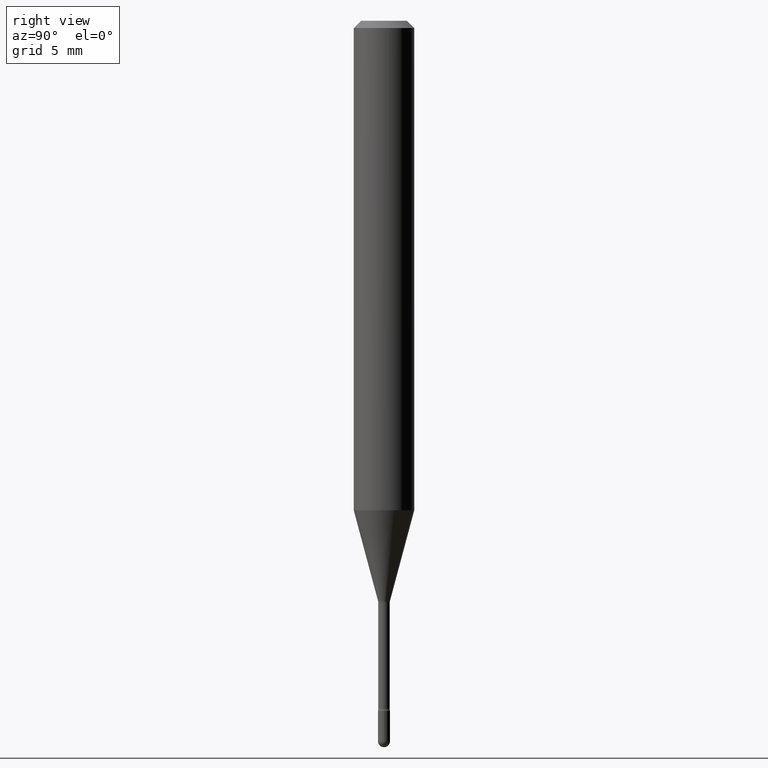
[diagram: clean part render]
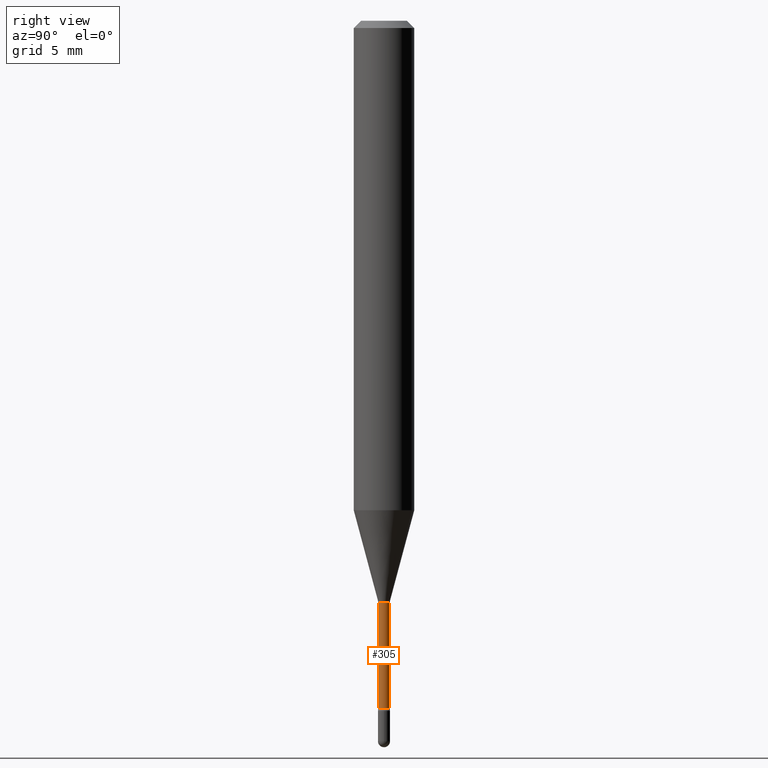
[diagram: same view with one face highlighted and labeled with its STEP entity id]
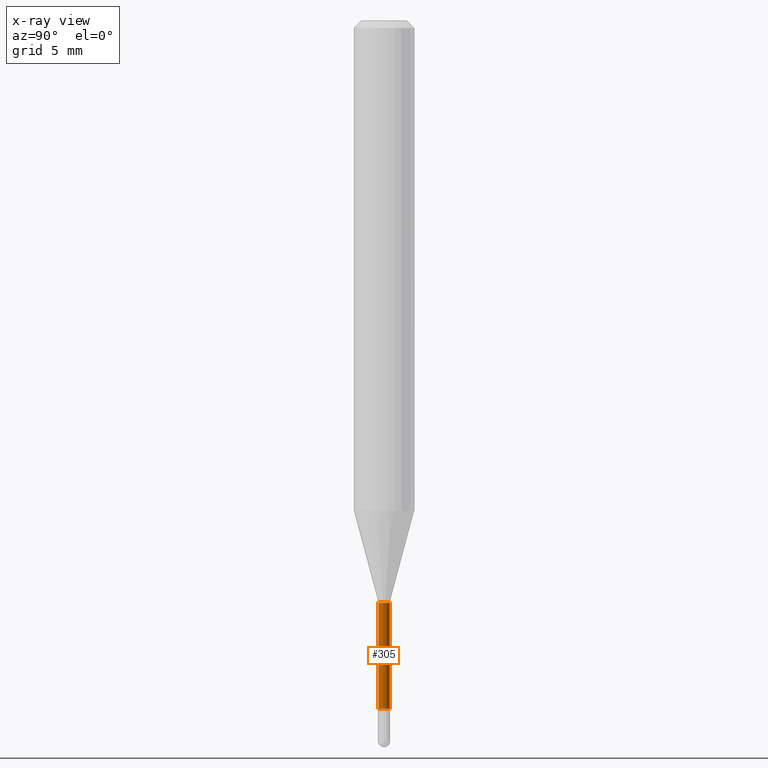
[diagram: x-ray of the same camera — body ghosted, the highlighted face saturated]
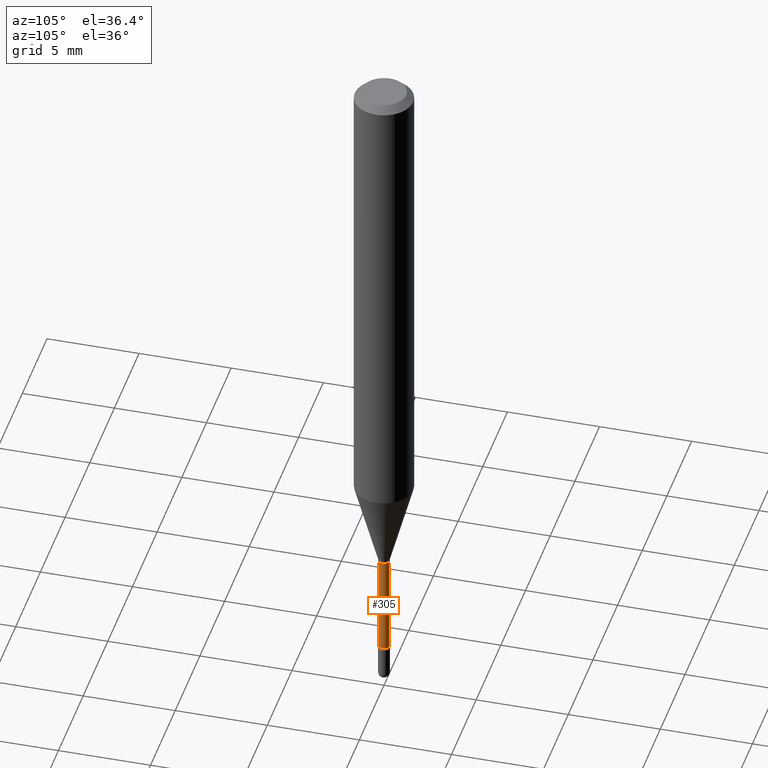
[diagram: same view with one face highlighted and labeled with its STEP entity id]
A machine part, right view. The second image highlights one B-rep face of the part: STEP entity #305.
The next image is the same camera in x-ray: the body ghosted, the highlighted face saturated — about 0% of this face is hidden behind the body in this view.
A second angle (auxiliary view) of the same face is appended — the face is thin or edge-on in the first view.
In plain terms, the highlighted cylindrical surface (edge-blend (fillet) strip) has radius 0.2985 mm, axis along (-0, 0, 1).
Its self-contained STEP definition (entity closure, byte-faithful):
#9 = AXIS2_PLACEMENT_3D ( 'NONE', #17, #540, #430 ) ;
#11 = EDGE_CURVE ( 'NONE', #352, #272, #504, .T. ) ;
#13 = DIRECTION ( 'NONE',  ( -2.445561478799539239E-29, 3.491348626384723119E-15, 1.000000000000000000 ) ) ;
#17 = CARTESIAN_POINT ( 'NONE',  ( 2.939503238709759037E-29, -4.196513023160846013E-15, -1.201974787463810701 ) ) ;
#31 = CARTESIAN_POINT ( 'NONE',  ( 3.473470712384296242E-29, -4.958819193710618417E-15, -1.420316251501201332 ) ) ;
#50 = ORIENTED_EDGE ( 'NONE', *, *, #11, .T. ) ;
#52 = EDGE_CURVE ( 'NONE', #224, #272, #218, .T. ) ;
#67 = CIRCLE ( 'NONE', #369, 0.01175000000000000350 ) ;
#70 = ORIENTED_EDGE ( 'NONE', *, *, #52, .F. ) ;
#77 = LINE ( 'NONE', #214, #467 ) ;
#120 = CARTESIAN_POINT ( 'NONE',  ( 8.615330671094703254E-17, 0.01174999999999504566, -1.420316251501201332 ) ) ;
#122 = EDGE_CURVE ( 'NONE', #488, #224, #77, .T. ) ;
#141 = EDGE_CURVE ( 'NONE', #488, #352, #67, .T. ) ;
#152 = EDGE_LOOP ( 'NONE', ( #396, #50, #70, #537 ) ) ;
#180 = CARTESIAN_POINT ( 'NONE',  ( 8.348877145184653122E-17, 0.01174999999999580547, -1.201974787463810701 ) ) ;
#214 = CARTESIAN_POINT ( 'NONE',  ( -8.204981146281365061E-17, -0.01175000000000000350, 5.190967452512665836E-16 ) ) ;
#218 = CIRCLE ( 'NONE', #9, 0.01175000000000000350 ) ;
#220 = CYLINDRICAL_SURFACE ( 'NONE', #438, 0.01175000000000000350 ) ;
#223 = FACE_OUTER_BOUND ( 'NONE', #152, .T. ) ;
#224 = VERTEX_POINT ( 'NONE', #391 ) ;
#231 = DIRECTION ( 'NONE',  ( -6.982962677686265922E-15, -1.000000000000000000, 3.491348626384723119E-15 ) ) ;
#272 = VERTEX_POINT ( 'NONE', #180 ) ;
#305 = ADVANCED_FACE ( 'NONE', ( #223 ), #220, .T. ) ;
#352 = VERTEX_POINT ( 'NONE', #120 ) ;
#360 = CARTESIAN_POINT ( 'NONE',  ( -1.169113584055446105E-44, 1.669184350826100908E-30, 4.780733988912460139E-16 ) ) ;
#366 = CARTESIAN_POINT ( 'NONE',  ( -8.204981146277892841E-17, -0.01175000000000496134, -1.420316251501201332 ) ) ;
#369 = AXIS2_PLACEMENT_3D ( 'NONE', #31, #429, #420 ) ;
#373 = DIRECTION ( 'NONE',  ( -2.445561478799539519E-29, 3.491348626384722725E-15, 1.000000000000000000 ) ) ;
#375 = VECTOR ( 'NONE', #373, 39.37007874015748143 ) ;
#391 = CARTESIAN_POINT ( 'NONE',  ( -8.204981146278426554E-17, -0.01175000000000419979, -1.201974787463810701 ) ) ;
#396 = ORIENTED_EDGE ( 'NONE', *, *, #141, .T. ) ;
#420 = DIRECTION ( 'NONE',  ( -6.982962677686265922E-15, -1.000000000000000000, 0.000000000000000000 ) ) ;
#429 = DIRECTION ( 'NONE',  ( -2.445561478799539239E-29, 3.491348626384723119E-15, 1.000000000000000000 ) ) ;
#430 = DIRECTION ( 'NONE',  ( -6.982962677686265922E-15, -1.000000000000000000, 0.000000000000000000 ) ) ;
#438 = AXIS2_PLACEMENT_3D ( 'NONE', #360, #13, #231 ) ;
#467 = VECTOR ( 'NONE', #562, 39.37007874015748143 ) ;
#488 = VERTEX_POINT ( 'NONE', #366 ) ;
#504 = LINE ( 'NONE', #546, #375 ) ;
#537 = ORIENTED_EDGE ( 'NONE', *, *, #122, .F. ) ;
#540 = DIRECTION ( 'NONE',  ( -2.445561478799539239E-29, 3.491348626384723119E-15, 1.000000000000000000 ) ) ;
#546 = CARTESIAN_POINT ( 'NONE',  ( 8.348877145181178436E-17, 0.01175000000000000350, 4.370500525312255428E-16 ) ) ;
#562 = DIRECTION ( 'NONE',  ( -2.445561478799539519E-29, 3.491348626384722725E-15, 1.000000000000000000 ) ) ;